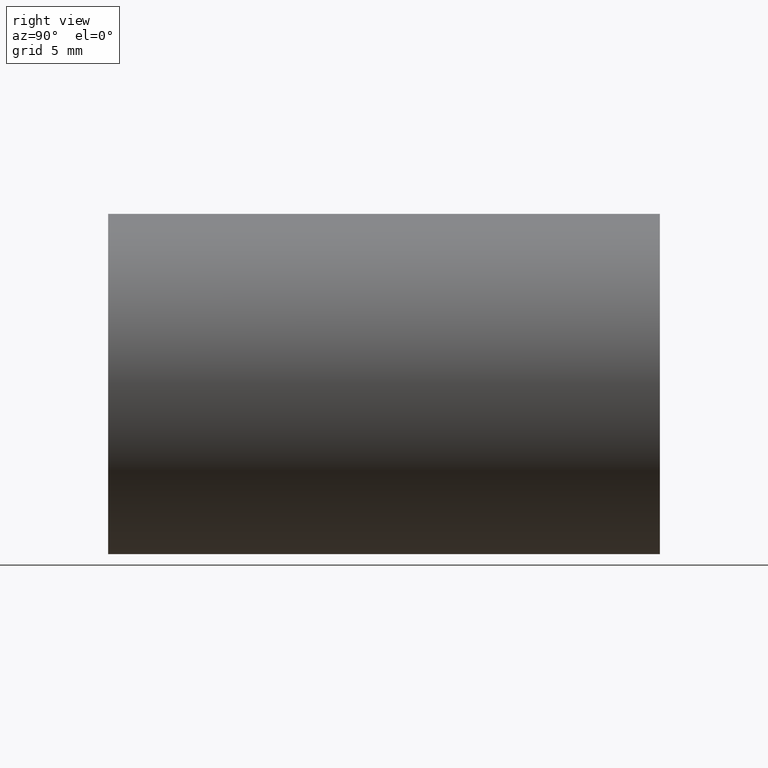
[diagram: clean part render]
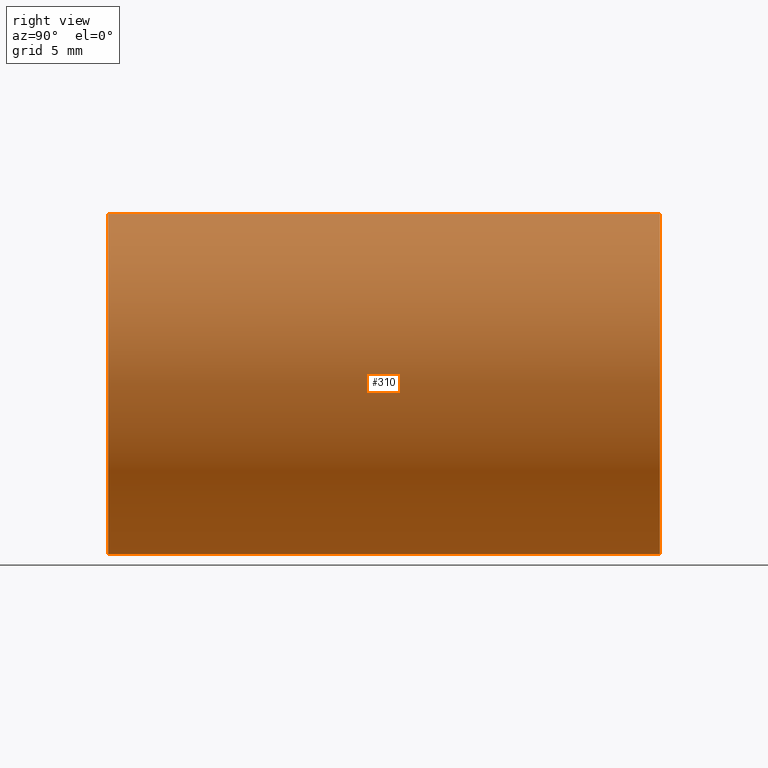
[diagram: same view with one face highlighted and labeled with its STEP entity id]
A machine part, right view. The second image highlights one B-rep face of the part: STEP entity #310.
In plain terms, the highlighted cylindrical surface (partial cylindrical patch) has radius 9.525 mm, axis along (-0, 1, -0).
Its self-contained STEP definition (entity closure, byte-faithful):
#8 = ORIENTED_EDGE ( 'NONE', *, *, #16, .F. ) ;
#16 = EDGE_CURVE ( 'NONE', #404, #327, #601, .T. ) ;
#19 = AXIS2_PLACEMENT_3D ( 'NONE', #148, #486, #59 ) ;
#58 = LINE ( 'NONE', #613, #299 ) ;
#59 = DIRECTION ( 'NONE',  ( 0.0000000000000000000, 0.0000000000000000000, 1.000000000000000000 ) ) ;
#64 = FACE_OUTER_BOUND ( 'NONE', #566, .T. ) ;
#68 = CARTESIAN_POINT ( 'NONE',  ( 0.0000000000000000000, -2.775557561562891400E-014, 9.525000000000019900 ) ) ;
#88 = LINE ( 'NONE', #550, #527 ) ;
#100 = EDGE_CURVE ( 'NONE', #111, #327, #58, .T. ) ;
#111 = VERTEX_POINT ( 'NONE', #624 ) ;
#141 = CIRCLE ( 'NONE', #578, 9.525000000000019900 ) ;
#148 = CARTESIAN_POINT ( 'NONE',  ( 0.0000000000000000000, 161.3761669434274500, 0.0000000000000000000 ) ) ;
#166 = CYLINDRICAL_SURFACE ( 'NONE', #19, 9.525000000000019900 ) ;
#200 = DIRECTION ( 'NONE',  ( 0.0000000000000000000, 0.0000000000000000000, 1.000000000000000000 ) ) ;
#218 = DIRECTION ( 'NONE',  ( -0.0000000000000000000, 1.000000000000000000, -0.0000000000000000000 ) ) ;
#219 = AXIS2_PLACEMENT_3D ( 'NONE', #505, #306, #307 ) ;
#299 = VECTOR ( 'NONE', #326, 1000.000000000000000 ) ;
#306 = DIRECTION ( 'NONE',  ( -0.0000000000000000000, 1.000000000000000000, -0.0000000000000000000 ) ) ;
#307 = DIRECTION ( 'NONE',  ( 0.0000000000000000000, 0.0000000000000000000, 1.000000000000000000 ) ) ;
#310 = ADVANCED_FACE ( 'NONE', ( #64 ), #166, .T. ) ;
#326 = DIRECTION ( 'NONE',  ( -0.0000000000000000000, 1.000000000000000000, -0.0000000000000000000 ) ) ;
#327 = VERTEX_POINT ( 'NONE', #446 ) ;
#396 = CARTESIAN_POINT ( 'NONE',  ( 0.0000000000000000000, 30.89999999999998400, 9.525000000000019900 ) ) ;
#404 = VERTEX_POINT ( 'NONE', #396 ) ;
#411 = ORIENTED_EDGE ( 'NONE', *, *, #100, .T. ) ;
#413 = EDGE_CURVE ( 'NONE', #467, #111, #141, .T. ) ;
#446 = CARTESIAN_POINT ( 'NONE',  ( 1.166476076187856400E-015, 30.89999999999998400, -9.525000000000019900 ) ) ;
#467 = VERTEX_POINT ( 'NONE', #68 ) ;
#486 = DIRECTION ( 'NONE',  ( -0.0000000000000000000, 1.000000000000000000, -0.0000000000000000000 ) ) ;
#490 = CARTESIAN_POINT ( 'NONE',  ( 0.0000000000000000000, -2.775557561562891400E-014, 0.0000000000000000000 ) ) ;
#505 = CARTESIAN_POINT ( 'NONE',  ( 0.0000000000000000000, 30.89999999999998400, 0.0000000000000000000 ) ) ;
#508 = EDGE_CURVE ( 'NONE', #467, #404, #88, .T. ) ;
#515 = ORIENTED_EDGE ( 'NONE', *, *, #413, .T. ) ;
#527 = VECTOR ( 'NONE', #218, 1000.000000000000000 ) ;
#540 = DIRECTION ( 'NONE',  ( -0.0000000000000000000, 1.000000000000000000, -0.0000000000000000000 ) ) ;
#550 = CARTESIAN_POINT ( 'NONE',  ( 0.0000000000000000000, 161.3761669434274500, 9.525000000000019900 ) ) ;
#566 = EDGE_LOOP ( 'NONE', ( #515, #411, #8, #615 ) ) ;
#578 = AXIS2_PLACEMENT_3D ( 'NONE', #490, #540, #200 ) ;
#601 = CIRCLE ( 'NONE', #219, 9.525000000000019900 ) ;
#613 = CARTESIAN_POINT ( 'NONE',  ( 1.166476076187856400E-015, 161.3761669434274500, -9.525000000000019900 ) ) ;
#615 = ORIENTED_EDGE ( 'NONE', *, *, #508, .F. ) ;
#624 = CARTESIAN_POINT ( 'NONE',  ( 1.166476076187856400E-015, -2.775557561562891400E-014, -9.525000000000019900 ) ) ;